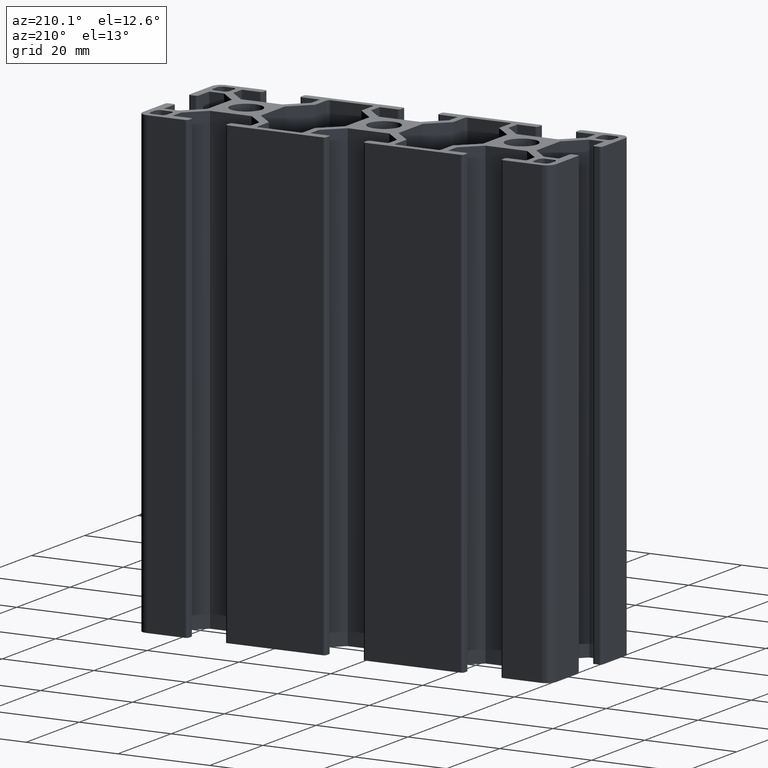
[diagram: clean part render]
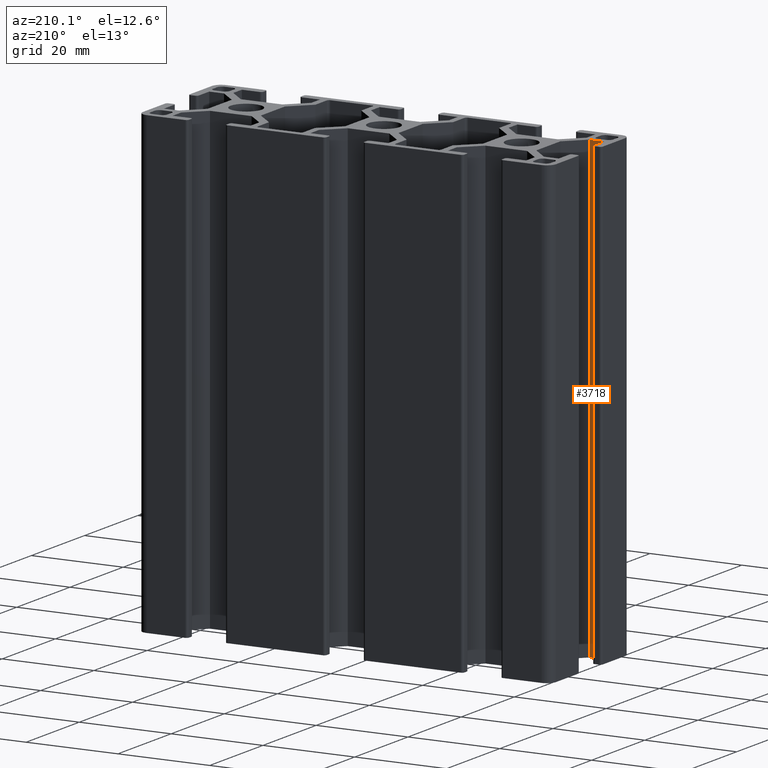
[diagram: same view with one face highlighted and labeled with its STEP entity id]
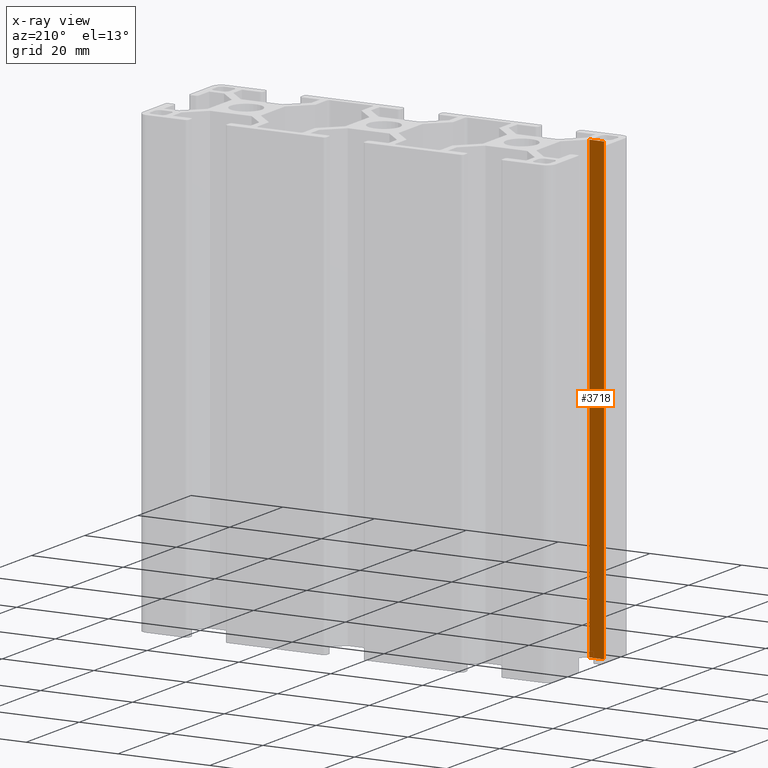
[diagram: x-ray of the same camera — body ghosted, the highlighted face saturated]
A machine part, auxiliary view. The second image highlights one B-rep face of the part: STEP entity #3718.
The next image is the same camera in x-ray: the body ghosted, the highlighted face saturated — about 0% of this face is hidden behind the body in this view.
In plain terms, the highlighted planar face has unit normal (0, -1, 0).
Its self-contained STEP definition (entity closure, byte-faithful):
#281=FACE_OUTER_BOUND('',#470,.T.);
#470=EDGE_LOOP('',(#2644,#2645,#2646,#2647));
#761=LINE('',#5577,#1193);
#764=LINE('',#5583,#1196);
#765=LINE('',#5585,#1197);
#766=LINE('',#5586,#1198);
#1193=VECTOR('',#4483,100.);
#1196=VECTOR('',#4488,3.227);
#1197=VECTOR('',#4489,100.);
#1198=VECTOR('',#4490,3.227);
#1604=VERTEX_POINT('',#5573);
#1606=VERTEX_POINT('',#5576);
#1608=VERTEX_POINT('',#5582);
#1609=VERTEX_POINT('',#5584);
#2031=EDGE_CURVE('',#1606,#1604,#761,.T.);
#2034=EDGE_CURVE('',#1608,#1604,#764,.T.);
#2035=EDGE_CURVE('',#1609,#1608,#765,.T.);
#2036=EDGE_CURVE('',#1606,#1609,#766,.T.);
#2644=ORIENTED_EDGE('',*,*,#2034,.F.);
#2645=ORIENTED_EDGE('',*,*,#2035,.F.);
#2646=ORIENTED_EDGE('',*,*,#2036,.F.);
#2647=ORIENTED_EDGE('',*,*,#2031,.T.);
#3576=PLANE('',#3941);
#3718=ADVANCED_FACE('',(#281),#3576,.F.);
#3941=AXIS2_PLACEMENT_3D('',#5581,#4486,#4487);
#4483=DIRECTION('',(0.,0.,1.));
#4486=DIRECTION('center_axis',(0.,-1.,0.));
#4487=DIRECTION('ref_axis',(0.,0.,-1.));
#4488=DIRECTION('',(-1.,0.,0.));
#4489=DIRECTION('',(0.,0.,1.));
#4490=DIRECTION('',(1.,0.,0.));
#5573=CARTESIAN_POINT('',(-43.,-8.49999999999998,100.));
#5576=CARTESIAN_POINT('',(-43.,-8.49999999999998,0.));
#5577=CARTESIAN_POINT('',(-43.,-8.49999999999998,0.));
#5581=CARTESIAN_POINT('Origin',(-39.773,-8.49999999999998,0.));
#5582=CARTESIAN_POINT('',(-39.773,-8.49999999999998,100.));
#5583=CARTESIAN_POINT('',(-19.8865,-8.49999999999998,100.));
#5584=CARTESIAN_POINT('',(-39.773,-8.49999999999998,0.));
#5585=CARTESIAN_POINT('',(-39.773,-8.49999999999998,0.));
#5586=CARTESIAN_POINT('',(-19.8865,-8.49999999999998,0.));